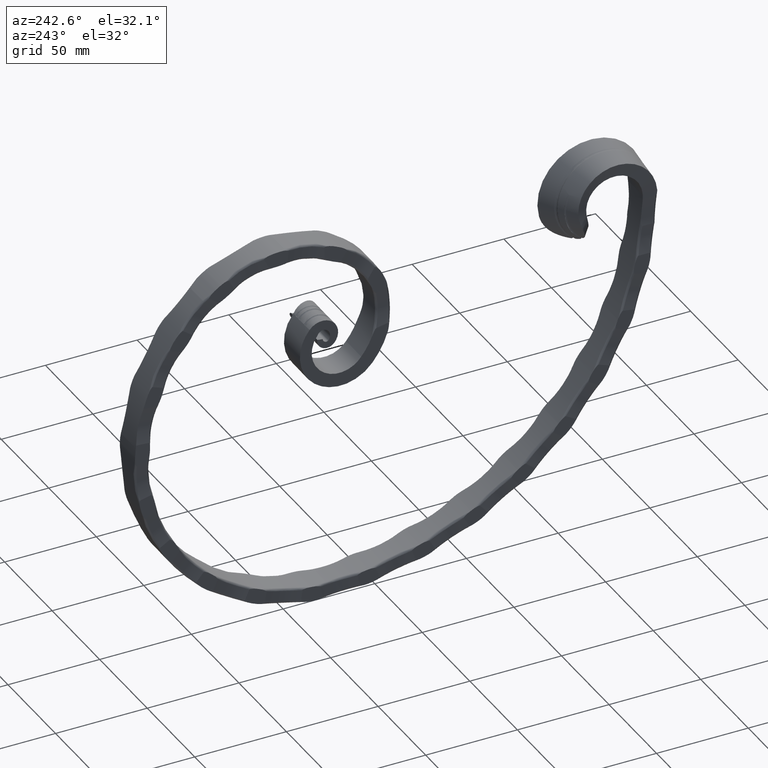
[diagram: clean part render]
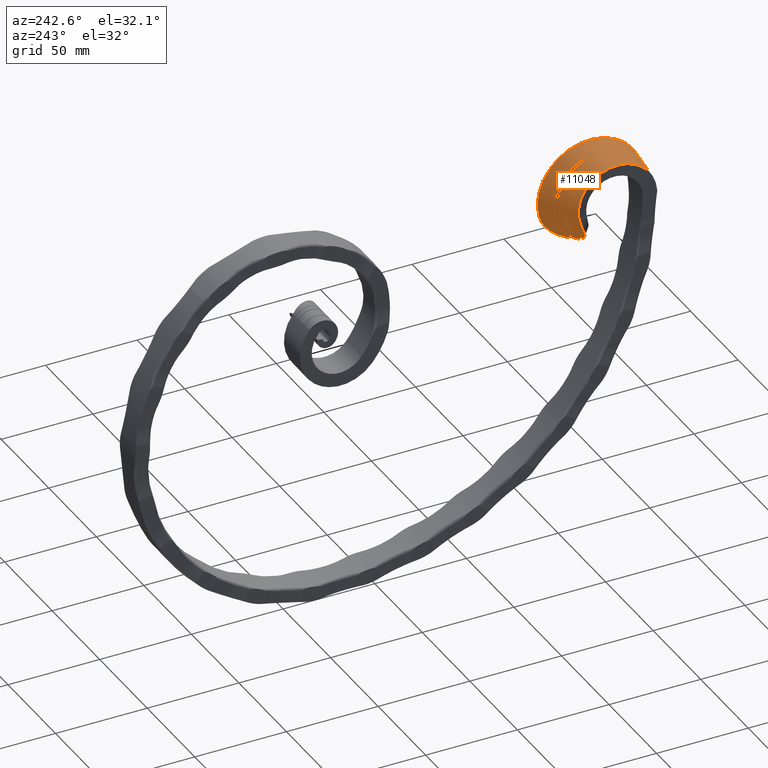
[diagram: same view with one face highlighted and labeled with its STEP entity id]
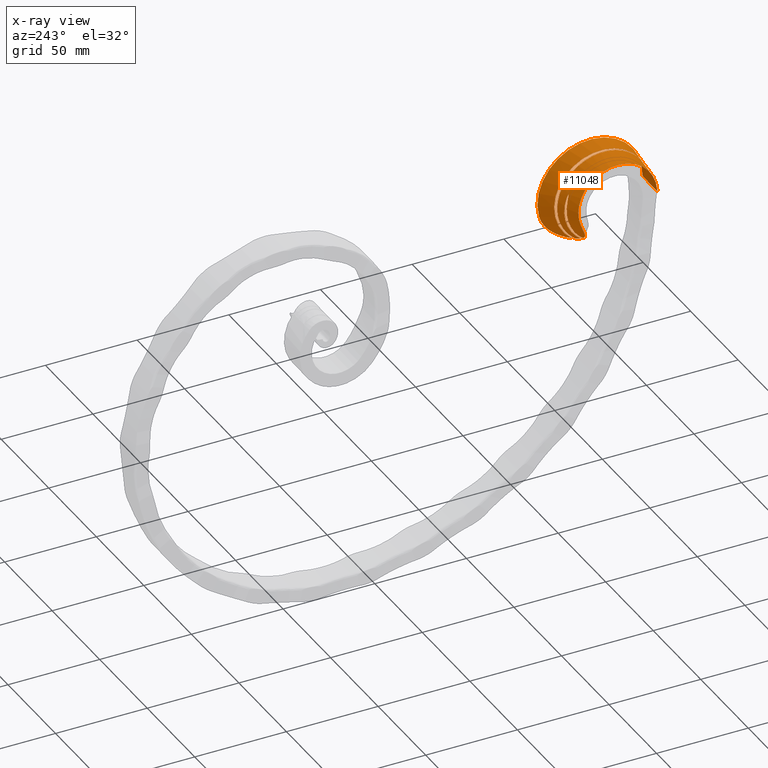
[diagram: x-ray of the same camera — body ghosted, the highlighted face saturated]
A machine part, auxiliary view. The second image highlights one B-rep face of the part: STEP entity #11048.
The next image is the same camera in x-ray: the body ghosted, the highlighted face saturated — about 0% of this face is hidden behind the body in this view.
In plain terms, the highlighted face is a freeform B-spline surface patch.
Its self-contained STEP definition (entity closure, byte-faithful):
#7 = CARTESIAN_POINT ( 'NONE',  ( 0.4046545045389011700, 44.35346468737994000, 61.21535776048465000 ) ) ;
#38 = CARTESIAN_POINT ( 'NONE',  ( -3.713677905306601800, 46.95859076458237500, 85.60435674398264900 ) ) ;
#122 = CARTESIAN_POINT ( 'NONE',  ( -4.061015382409624200, 46.36935283958447900, 86.72395618893986600 ) ) ;
#211 = CARTESIAN_POINT ( 'NONE',  ( -4.552540964361331700, 47.64450459978508700, 81.24166794001725100 ) ) ;
#235 = VERTEX_POINT ( 'NONE', #668 ) ;
#293 = CARTESIAN_POINT ( 'NONE',  ( -4.830681842028948100, 45.14676392372219000, 67.43612818840910000 ) ) ;
#412 = CARTESIAN_POINT ( 'NONE',  ( 8.077712033042658400, 0.02215007884358606200, 79.40595449023814500 ) ) ;
#448 = VERTEX_POINT ( 'NONE', #3330 ) ;
#668 = CARTESIAN_POINT ( 'NONE',  ( -7.417567950427967500, 2.775557561562891400E-014, 77.46681638635321600 ) ) ;
#760 = ORIENTED_EDGE ( 'NONE', *, *, #24420, .T. ) ;
#763 = CARTESIAN_POINT ( 'NONE',  ( -0.1726782574718009900, 40.07180178071603600, 57.59409627585339600 ) ) ;
#860 = CARTESIAN_POINT ( 'NONE',  ( 0.4031574146756074500, 40.37609016458728900, 57.42051969867375800 ) ) ;
#936 = CARTESIAN_POINT ( 'NONE',  ( -9.805080397110002000, 29.72316063572104000, 99.16512212265777700 ) ) ;
#964 = CARTESIAN_POINT ( 'NONE',  ( -7.494909445158469900, 0.002167341518089708400, 77.48223012355828100 ) ) ;
#991 = CARTESIAN_POINT ( 'NONE',  ( 2.153355759835845300, 48.28251731812625300, 65.39792249497124000 ) ) ;
#1087 = CARTESIAN_POINT ( 'NONE',  ( 2.130588235911123900, 48.98999547873683700, 87.48406834129724500 ) ) ;
#1179 = CARTESIAN_POINT ( 'NONE',  ( 2.001894952901132700, 37.44871637248173400, 100.0195760565928300 ) ) ;
#1266 = CARTESIAN_POINT ( 'NONE',  ( 1.749924230457730300, 21.57650100309085100, 102.7389972019139600 ) ) ;
#1354 = CARTESIAN_POINT ( 'NONE',  ( 1.317845256815648200, 6.902711322241778200, 95.03630474026778100 ) ) ;
#1379 = CARTESIAN_POINT ( 'NONE',  ( -11.46468191822048700, 43.44245422419015800, 72.20080714476111400 ) ) ;
#1437 = CARTESIAN_POINT ( 'NONE',  ( 1.011901000634758000, 1.458381421132097100, 86.17026355039551800 ) ) ;
#1468 = CARTESIAN_POINT ( 'NONE',  ( 11.86732868806311500, 50.02617433897074100, 57.44475894044169500 ) ) ;
#1491 = CARTESIAN_POINT ( 'NONE',  ( 10.93293185059946600, 51.86466323729519700, 62.05100274835331900 ) ) ;
#1522 = CARTESIAN_POINT ( 'NONE',  ( 0.7889240484920608800, 1.115680791272770400, 85.07046507264365700 ) ) ;
#1541 = CARTESIAN_POINT ( 'NONE',  ( -3.063641047619770900, 39.18434240727955100, 59.02342452768319000 ) ) ;
#1558 = CARTESIAN_POINT ( 'NONE',  ( 8.516227421628684600, 2.169110670608330100, 90.21525714800401400 ) ) ;
#1583 = CARTESIAN_POINT ( 'NONE',  ( 5.667886928572917400, 44.27075992354308200, 56.90862780206411000 ) ) ;
#1615 = CARTESIAN_POINT ( 'NONE',  ( 0.6761728204816450600, 2.946319584382348200, 89.40629978739146100 ) ) ;
#1650 = CARTESIAN_POINT ( 'NONE',  ( -10.06282148032709700, 34.84134389484221100, 96.90204824860515500 ) ) ;
#1684 = CARTESIAN_POINT ( 'NONE',  ( 7.471852211257529000, 0.0007103798905311139300, 77.53076654668075200 ) ) ;
#1698 = CARTESIAN_POINT ( 'NONE',  ( -9.566113132704295200, 40.30999555786549800, 64.97557746800737300 ) ) ;
#1704 = CARTESIAN_POINT ( 'NONE',  ( 0.5251126645996897500, 14.66886214607818700, 100.3963440599779300 ) ) ;
#1788 = CARTESIAN_POINT ( 'NONE',  ( 0.4647202954371461600, 32.12114033444702700, 101.6332952863986500 ) ) ;
#1853 = CARTESIAN_POINT ( 'NONE',  ( 11.50402912730326800, 54.45752578793186400, 67.79832886126654000 ) ) ;
#1873 = CARTESIAN_POINT ( 'NONE',  ( 0.4287178758976921100, 46.18160434405823600, 91.22834712277882800 ) ) ;
#1904 = CARTESIAN_POINT ( 'NONE',  ( -3.069935251691676500, 41.90144415151966900, 61.45384806774478600 ) ) ;
#1918 = B_SPLINE_CURVE_WITH_KNOTS ( 'NONE', 3,
 ( #1904, #14254, #16309, #3979, #18387, #6068, #20475, #8133, #22558, #10223, #24610, #12278, #26675, #14350, #1991, #16402, #4070, #18476, #6155, #20561, #8222, #22645, #10308, #24709, #12373, #38, #14435, #2083, #16485, #4157, #18564, #6241, #20643, #8306, #22739, #10394, #24792, #12463, #122, #14525, #2174, #16571, #4243, #18655, #6327, #20731, #8396, #22830, #10480, #24871, #12550, #211, #14606, #2259, #16661, #4336, #18745, #6418, #20820, #8480, #22919, #10563, #24955, #12639, #293, #14687, #2337, #16753, #4425, #18834, #6506, #20910 ),
 .UNSPECIFIED., .F., .F.,
 ( 4, 2, 2, 2, 2, 2, 2, 2, 2, 2, 2, 2, 2, 2, 2, 2, 2, 2, 2, 2, 2, 2, 2, 2, 2, 2, 2, 2, 2, 2, 2, 2, 2, 2, 2, 4 ),
 ( 0.003969182100305719400, 0.005697004881677323500, 0.007424827663048926700, 0.009152650444420529900, 0.01088047322579213300, 0.01433611878853534300, 0.01606394156990696700, 0.01779176435127859500, 0.02124740991402188800, 0.02297523269539353300, 0.02470305547676518100, 0.02815870103950847400, 0.02988652382088010200, 0.03075043521156593800, 0.03118239090690886100, 0.03139836875458030400, 0.03150635767841603000, 0.03156035214033390400, 0.03161434660225177800, 0.03172233552608756000, 0.03183032444992334200, 0.03204630229759494000, 0.03247825799293819300, 0.03334216938362464400, 0.03506999216499758600, 0.03679781494637052900, 0.03852563772774346400, 0.04198128329048934900, 0.04370910607186229100, 0.04543692885323523400, 0.04889257441598108400, 0.05062039719735402000, 0.05234821997872696200, 0.05580386554147284700, 0.05753168832284577500, 0.05925951110421872500 ),
 .UNSPECIFIED. ) ;
#1942 = CARTESIAN_POINT ( 'NONE',  ( 9.031760308188959000, 10.79693585374444900, 100.5009846566071000 ) ) ;
#1958 = CARTESIAN_POINT ( 'NONE',  ( 0.4111503856460302900, 50.20623699455984500, 75.66215713267666800 ) ) ;
#1991 = CARTESIAN_POINT ( 'NONE',  ( -3.246443358840113400, 47.98565407440992200, 72.92019166033222200 ) ) ;
#2051 = CARTESIAN_POINT ( 'NONE',  ( 0.4253122216621678100, 43.33267540988922000, 60.11206570008644000 ) ) ;
#2083 = CARTESIAN_POINT ( 'NONE',  ( -3.797079584617927500, 46.67638026011471200, 86.26346211219426200 ) ) ;
#2174 = CARTESIAN_POINT ( 'NONE',  ( -4.095698840102883800, 46.39325252362832000, 86.62486423484386900 ) ) ;
#2259 = CARTESIAN_POINT ( 'NONE',  ( -4.638503687838510600, 47.83895141282980000, 78.97369534505456600 ) ) ;
#2337 = CARTESIAN_POINT ( 'NONE',  ( -4.838602443254784700, 43.69709845770053400, 64.99712343210509900 ) ) ;
#2648 = B_SPLINE_CURVE_WITH_KNOTS ( 'NONE', 3,
 ( #1853, #26537, #6020, #20427, #8085, #22510, #10174, #24563, #12226, #26626, #14296, #1942, #16349, #4024, #18430, #6108, #20510 ),
 .UNSPECIFIED., .F., .F.,
 ( 4, 1, 1, 1, 1, 1, 1, 1, 1, 1, 1, 1, 1, 1, 4 ),
 ( 0.1556909685597093500, 0.1938028570125166500, 0.2577550799770388400, 0.3213844047775982200, 0.3846892785897625400, 0.4476682731905031700, 0.5103230250240365900, 0.5726633423808489300, 0.6346795608638097200, 0.6963713815246755900, 0.7577393955885792800, 0.8187873653107224900, 0.8795118471030244400, 0.9399101516636960700, 0.9819018657741979100 ),
 .UNSPECIFIED. ) ;
#2883 = CARTESIAN_POINT ( 'NONE',  ( 2.146588070278989200, 41.41003923904213500, 56.99871040378679500 ) ) ;
#2930 = CARTESIAN_POINT ( 'NONE',  ( -0.7528962107540830800, 39.80096395168226300, 57.80142495540335500 ) ) ;
#3003 = CARTESIAN_POINT ( 'NONE',  ( -9.289540850238346100, 18.29611209918004600, 99.54592208276849900 ) ) ;
#3031 = CARTESIAN_POINT ( 'NONE',  ( -7.417567950427967500, 2.775557561562891400E-014, 77.46681638635321600 ) ) ;
#3062 = CARTESIAN_POINT ( 'NONE',  ( 2.160901421412342300, 49.53221166227533000, 68.10137628613574600 ) ) ;
#3150 = CARTESIAN_POINT ( 'NONE',  ( 2.124305352519813000, 48.35897332397820500, 88.83982160421092500 ) ) ;
#3246 = CARTESIAN_POINT ( 'NONE',  ( 1.984972510499537000, 36.11032778668803200, 100.6826338616508400 ) ) ;
#3330 = CARTESIAN_POINT ( 'NONE',  ( -3.069935251691676500, 41.90144415151966900, 61.45384806774478600 ) ) ;
#3331 = CARTESIAN_POINT ( 'NONE',  ( 1.705638140805671600, 19.63026560010857600, 102.3459647621500300 ) ) ;
#3422 = CARTESIAN_POINT ( 'NONE',  ( 1.222057751649042700, 5.306061188055242200, 93.13733519900920000 ) ) ;
#3458 = VERTEX_POINT ( 'NONE', #11752 ) ;
#3475 = CARTESIAN_POINT ( 'NONE',  ( 11.53396257131297500, 54.22053937976629400, 66.91280218280273600 ) ) ;
#3511 = CARTESIAN_POINT ( 'NONE',  ( 0.9436607437851231000, 1.226294963661870700, 85.45923619600942800 ) ) ;
#3540 = CARTESIAN_POINT ( 'NONE',  ( 11.35170000075693900, 55.65764547657246900, 72.33272728265484400 ) ) ;
#3565 = CARTESIAN_POINT ( 'NONE',  ( 10.27715735448653500, 50.49041647878395600, 60.38563635823810200 ) ) ;
#3596 = CARTESIAN_POINT ( 'NONE',  ( 0.7680551850655834600, 1.143881659741613700, 85.15827441582872800 ) ) ;
#3626 = CARTESIAN_POINT ( 'NONE',  ( 8.086015385827119300, 0.01409203381071238300, 79.61383222423816600 ) ) ;
#3651 = CARTESIAN_POINT ( 'NONE',  ( 4.665361901866082100, 43.33445094844012900, 56.80562472394729700 ) ) ;
#3687 = CARTESIAN_POINT ( 'NONE',  ( 0.6584416467555129800, 4.219386209694847300, 91.53826134127487500 ) ) ;
#3722 = CARTESIAN_POINT ( 'NONE',  ( -9.547308360994989600, 24.08996396216900100, 100.1015128502961700 ) ) ;
#3755 = CARTESIAN_POINT ( 'NONE',  ( 7.508222333267005900, 0.001537141612279437300, 77.60843604941347000 ) ) ;
#3770 = CARTESIAN_POINT ( 'NONE',  ( -10.16023319765587000, 40.75858455433260700, 65.98885973050927600 ) ) ;
#3777 = CARTESIAN_POINT ( 'NONE',  ( 0.5097546837114933500, 18.39430584087280700, 101.8069871461422800 ) ) ;
#3816 = ORIENTED_EDGE ( 'NONE', *, *, #22570, .T. ) ;
#3866 = CARTESIAN_POINT ( 'NONE',  ( 0.4599528044573262800, 33.54029315980061200, 101.1748107602382200 ) ) ;
#3949 = CARTESIAN_POINT ( 'NONE',  ( 0.4266656943034459200, 47.65155239352076000, 88.65317170319940500 ) ) ;
#3979 = CARTESIAN_POINT ( 'NONE',  ( -3.115931274708327400, 43.43555827533965200, 63.13605745538836100 ) ) ;
#4024 = CARTESIAN_POINT ( 'NONE',  ( 8.516227421628698800, 2.169110670608329600, 90.21525714800401400 ) ) ;
#4039 = CARTESIAN_POINT ( 'NONE',  ( 0.4099961544226706800, 49.92349638553763200, 73.19873180977936000 ) ) ;
#4070 = CARTESIAN_POINT ( 'NONE',  ( -3.305271515638511300, 48.40510089446632200, 75.74547049610845300 ) ) ;
#4125 = CARTESIAN_POINT ( 'NONE',  ( 0.4408336210431972900, 42.25784845948317800, 59.06623298223212300 ) ) ;
#4157 = CARTESIAN_POINT ( 'NONE',  ( -3.860963980639309700, 46.52063561003266300, 86.58314030525309600 ) ) ;
#4243 = CARTESIAN_POINT ( 'NONE',  ( -4.138356037653284900, 46.44040031458897000, 86.45662145469462700 ) ) ;
#4336 = CARTESIAN_POINT ( 'NONE',  ( -4.718422030224097300, 47.72237162594070300, 76.12631847517468500 ) ) ;
#4340 = CARTESIAN_POINT ( 'NONE',  ( -3.054247311578651500, 41.02719169695356500, 60.61394051338651000 ) ) ;
#4425 = CARTESIAN_POINT ( 'NONE',  ( -4.833664666898753700, 42.27239879454640500, 63.24177483304919900 ) ) ;
#4865 = EDGE_CURVE ( 'NONE', #24788, #13261, #25129, .T. ) ;
#5054 = CARTESIAN_POINT ( 'NONE',  ( 2.153860729975295700, 41.78581537193818500, 57.32668569409306500 ) ) ;
#5089 = CARTESIAN_POINT ( 'NONE',  ( -8.774004994688457500, 7.748249616374097900, 94.07804201680029600 ) ) ;
#5150 = CARTESIAN_POINT ( 'NONE',  ( 2.161685548252818600, 50.97246609181642900, 73.90533583486991600 ) ) ;
#5242 = CARTESIAN_POINT ( 'NONE',  ( 2.102066553468775900, 46.07902226199143300, 92.68365597161788100 ) ) ;
#5335 = CARTESIAN_POINT ( 'NONE',  ( 1.945198011409548600, 33.34461523938187400, 101.8365720338495600 ) ) ;
#5422 = CARTESIAN_POINT ( 'NONE',  ( 1.671804080468219000, 18.18038153697205000, 101.9604856360853400 ) ) ;
#5507 = CARTESIAN_POINT ( 'NONE',  ( 1.163923086386863000, 4.424717978815544400, 91.92305477299125000 ) ) ;
#5596 = CARTESIAN_POINT ( 'NONE',  ( 0.9062869360410343900, 1.153860388355899300, 85.22104544101605900 ) ) ;
#5625 = CARTESIAN_POINT ( 'NONE',  ( 10.83615419537688700, 53.43868258601478500, 87.61050414489967900 ) ) ;
#5653 = CARTESIAN_POINT ( 'NONE',  ( 9.768512732788945400, 49.57254130833398900, 59.50246660955890100 ) ) ;
#5660 = ORIENTED_EDGE ( 'NONE', *, *, #25651, .T. ) ;
#5674 = EDGE_CURVE ( 'NONE', #12057, #235, #24838, .T. ) ;
#5692 = CARTESIAN_POINT ( 'NONE',  ( 0.7479243766305727600, 1.181755205390757200, 85.27587725220385600 ) ) ;
#5704 = ORIENTED_EDGE ( 'NONE', *, *, #23783, .F. ) ;
#5724 = CARTESIAN_POINT ( 'NONE',  ( -12.12435565298218300, 35.81484655242340400, 63.01166313506922700 ) ) ;
#5730 = ORIENTED_EDGE ( 'NONE', *, *, #5674, .F. ) ;
#5747 = CARTESIAN_POINT ( 'NONE',  ( 2.900282065969606500, 41.90721395501395800, 56.86331928085758100 ) ) ;
#5774 = CARTESIAN_POINT ( 'NONE',  ( -4.788019386995602900, 39.04195103715922200, 60.19742708643666900 ) ) ;
#5783 = CARTESIAN_POINT ( 'NONE',  ( 0.6126958776768738300, 6.011578878109970600, 93.89390824726638100 ) ) ;
#5812 = CARTESIAN_POINT ( 'NONE',  ( -9.031760308188937700, 12.71804930843093800, 97.52593081537978000 ) ) ;
#5849 = CARTESIAN_POINT ( 'NONE',  ( 7.569820779318605200, 0.003161892257669973400, 77.76850671561776100 ) ) ;
#5861 = CARTESIAN_POINT ( 'NONE',  ( -10.54430106429125000, 41.11556539098187100, 66.78230002207409700 ) ) ;
#5871 = CARTESIAN_POINT ( 'NONE',  ( 0.4879838050392544300, 22.78916340004606800, 102.5351021677072700 ) ) ;
#5951 = CARTESIAN_POINT ( 'NONE',  ( 0.4490954371001564800, 37.60656923660936000, 99.38844495005625400 ) ) ;
#6020 = CARTESIAN_POINT ( 'NONE',  ( 11.31654440799338300, 55.64012376030683500, 73.40221518392438300 ) ) ;
#6037 = CARTESIAN_POINT ( 'NONE',  ( 0.4245300586897743400, 48.62600380460642700, 86.38271750335849200 ) ) ;
#6068 = CARTESIAN_POINT ( 'NONE',  ( -3.142000752532627700, 44.44999384385753400, 64.50531773294355300 ) ) ;
#6108 = CARTESIAN_POINT ( 'NONE',  ( 8.137803548518533600, 0.05384774781920124300, 80.90445239334046300 ) ) ;
#6124 = CARTESIAN_POINT ( 'NONE',  ( 0.4087846742981204900, 49.25455820896073800, 70.31394125783828000 ) ) ;
#6155 = CARTESIAN_POINT ( 'NONE',  ( -3.365281099265176000, 48.44965047521228000, 78.02296882059242500 ) ) ;
#6206 = CARTESIAN_POINT ( 'NONE',  ( 0.4306623566280761700, 41.13976488948677700, 58.06696279547851000 ) ) ;
#6241 = CARTESIAN_POINT ( 'NONE',  ( -3.910874841311058800, 46.43573532836065000, 86.73463269796084800 ) ) ;
#6327 = CARTESIAN_POINT ( 'NONE',  ( -4.199752907216688600, 46.54253129605480400, 86.11805157997201800 ) ) ;
#6338 = B_SPLINE_CURVE_WITH_KNOTS ( 'NONE', 3,
 ( #19424, #21509, #9161, #23587, #11241, #25641, #13319, #964, #15364, #3031 ),
 .UNSPECIFIED., .F., .F.,
 ( 4, 2, 2, 2, 4 ),
 ( 9.805561625928972200E-017, 0.0004708049491442460700, 0.0007062074237163201000, 0.0008239086610023560800, 0.0009416098982883921700 ),
 .UNSPECIFIED. ) ;
#6383 = B_SPLINE_CURVE_WITH_KNOTS ( 'NONE', 3,
 ( #22149, #24210, #11954, #26355, #14038, #1684, #16087, #3755, #18160, #5849, #20245, #7910, #22333, #9988, #24382, #12041 ),
 .UNSPECIFIED., .F., .F.,
 ( 4, 2, 2, 2, 2, 2, 2, 4 ),
 ( 0.0000000000000000000, 3.255785051291823200E-005, 6.511570102583646300E-005, 0.0001302314020516742500, 0.0002604628041033105100, 0.0005209256082066232900, 0.001041851216413289300, 0.002083702432826580800 ),
 .UNSPECIFIED. ) ;
#6418 = CARTESIAN_POINT ( 'NONE',  ( -4.755067024646325400, 47.49797580493682900, 74.42107629118206100 ) ) ;
#6422 = CARTESIAN_POINT ( 'NONE',  ( -3.069935251691676500, 41.90144415151966900, 61.45384806774478600 ) ) ;
#6506 = CARTESIAN_POINT ( 'NONE',  ( -4.811249299514062500, 41.08481133685460000, 62.01284228190490200 ) ) ;
#6606 = ORIENTED_EDGE ( 'NONE', *, *, #25153, .T. ) ;
#6700 = B_SPLINE_CURVE_WITH_KNOTS ( 'NONE', 3,
 ( #5774, #18089, #22256, #9914, #24309, #11968, #26367, #14052, #1698, #16101, #3770, #18173, #5861, #20260, #7925, #22346, #10001, #24397, #12056, #26457 ),
 .UNSPECIFIED., .F., .F.,
 ( 4, 2, 2, 2, 2, 2, 2, 2, 2, 4 ),
 ( 0.005069793381808457600, 0.008839806782681165100, 0.009782310132899329400, 0.01072481348311749400, 0.01260982018355378800, 0.01355232353377192100, 0.01449482688399005000, 0.01637983358442632300, 0.01826484028486260000, 0.02014984698529887300 ),
 .UNSPECIFIED. ) ;
#6857 = B_SPLINE_CURVE_WITH_KNOTS ( 'NONE', 3,
 ( #22383, #26499, #16663, #4340, #18750, #6422 ),
 .UNSPECIFIED., .F., .F.,
 ( 4, 2, 4 ),
 ( 0.0003169208481356086100, 0.002143051474220664000, 0.003969182100305719400 ),
 .UNSPECIFIED. ) ;
#7017 = VERTEX_POINT ( 'NONE', #11858 ) ;
#7134 = CARTESIAN_POINT ( 'NONE',  ( 2.157359879432641000, 43.25533567370868600, 58.67541181108789100 ) ) ;
#7168 = B_SPLINE_CURVE_WITH_KNOTS ( 'NONE', 3,
 ( #18227, #19496, #7967, #22394 ),
 .UNSPECIFIED., .F., .F.,
 ( 4, 4 ),
 ( 0.05925951110421872500, 0.06142842451970805700 ),
 .UNSPECIFIED. ) ;
#7171 = CARTESIAN_POINT ( 'NONE',  ( -8.267639406125360000, 1.020113736269256900, 83.98764681792356200 ) ) ;
#7225 = CARTESIAN_POINT ( 'NONE',  ( 2.157368309165344400, 51.07856153858630000, 78.83929400585601900 ) ) ;
#7314 = CARTESIAN_POINT ( 'NONE',  ( 2.078455277744427000, 44.11772677116842800, 94.91362620901740900 ) ) ;
#7405 = CARTESIAN_POINT ( 'NONE',  ( 1.877174447606702000, 28.99378924866101000, 102.7640237692717700 ) ) ;
#7487 = CARTESIAN_POINT ( 'NONE',  ( 1.616697672685276400, 15.83412167976587200, 101.1536746190421200 ) ) ;
#7581 = CARTESIAN_POINT ( 'NONE',  ( 1.113247916774718000, 3.616258472748491700, 90.66536207679683900 ) ) ;
#7657 = DIRECTION ( 'NONE',  ( -1.000000000000000000, -0.0000000000000000000, 0.0000000000000000000 ) ) ;
#7670 = CARTESIAN_POINT ( 'NONE',  ( 0.8772045123505029000, 1.119721431402162200, 85.10316556467630300 ) ) ;
#7695 = CARTESIAN_POINT ( 'NONE',  ( 10.32061806383751800, 44.31283625807602500, 99.50041582866076300 ) ) ;
#7721 = CARTESIAN_POINT ( 'NONE',  ( 8.970483038561793500, 48.28090025577773800, 58.49569369219044300 ) ) ;
#7754 = CARTESIAN_POINT ( 'NONE',  ( 0.7219968082614540700, 1.259248481931474000, 85.51267118661836300 ) ) ;
#7787 = CARTESIAN_POINT ( 'NONE',  ( -11.86732868806303300, 39.58902618139190800, 65.71090506263129800 ) ) ;
#7840 = CARTESIAN_POINT ( 'NONE',  ( 0.5872375992363466600, 7.372079833690429000, 95.33764329221480700 ) ) ;
#7867 = CARTESIAN_POINT ( 'NONE',  ( -8.516227421628688200, 3.751946080758758100, 89.41109746902760900 ) ) ;
#7910 = CARTESIAN_POINT ( 'NONE',  ( 7.677454941585303100, 0.006296475049366222200, 78.09400037963637000 ) ) ;
#7925 = CARTESIAN_POINT ( 'NONE',  ( -11.04973842089121000, 41.73364855023641000, 68.15210706289022400 ) ) ;
#7933 = CARTESIAN_POINT ( 'NONE',  ( 0.4826597474533588200, 24.28564248118693000, 102.6276544694664800 ) ) ;
#7967 = CARTESIAN_POINT ( 'NONE',  ( -4.781537784191376000, 39.59532047417466300, 60.65785907415730800 ) ) ;
#8014 = CARTESIAN_POINT ( 'NONE',  ( 0.4445910594262250100, 40.87150990873956100, 97.08756955576285500 ) ) ;
#8085 = CARTESIAN_POINT ( 'NONE',  ( 10.83615419537688300, 53.43868258601478500, 87.61050414489967900 ) ) ;
#8104 = CARTESIAN_POINT ( 'NONE',  ( 0.4226043530098367900, 49.11414620510429800, 84.97248109466229900 ) ) ;
#8133 = CARTESIAN_POINT ( 'NONE',  ( -3.157440306490892000, 45.35766428891994900, 65.95902810478746400 ) ) ;
#8190 = CARTESIAN_POINT ( 'NONE',  ( 0.4036219964038836900, 48.24593193278462200, 67.49840557580842000 ) ) ;
#8222 = CARTESIAN_POINT ( 'NONE',  ( -3.416925532757386200, 48.34928714848707200, 79.74038248325938100 ) ) ;
#8275 = CARTESIAN_POINT ( 'NONE',  ( 0.4031574146756074500, 40.37609016458728900, 57.42051969867375800 ) ) ;
#8306 = CARTESIAN_POINT ( 'NONE',  ( -3.952549903242964300, 46.38927009705994200, 86.79990941699196600 ) ) ;
#8357 = CARTESIAN_POINT ( 'NONE',  ( 0.4031574146756074500, 40.37609016458728900, 57.42051969867375800 ) ) ;
#8396 = CARTESIAN_POINT ( 'NONE',  ( -4.286142522472800900, 46.74886487317589700, 85.43559791494745100 ) ) ;
#8405 = VECTOR ( 'NONE', #7657, 1000.000000000000000 ) ;
#8480 = CARTESIAN_POINT ( 'NONE',  ( -4.792701745009305900, 47.03037030699681500, 72.19728229821852500 ) ) ;
#8547 = FACE_OUTER_BOUND ( 'NONE', #23462, .T. ) ;
#8946 = CARTESIAN_POINT ( 'NONE',  ( -11.42684258105365900, 43.70057242906779000, 72.87037343557048500 ) ) ;
#9133 = CARTESIAN_POINT ( 'NONE',  ( -11.09391626697323100, 44.96070964439305600, 79.17418928462811300 ) ) ;
#9161 = CARTESIAN_POINT ( 'NONE',  ( -7.868897030471460500, 0.05867829342241096000, 77.87403609856632200 ) ) ;
#9194 = CARTESIAN_POINT ( 'NONE',  ( 2.148053640759215500, 44.98942589261485400, 60.44743317942301500 ) ) ;
#9227 = CARTESIAN_POINT ( 'NONE',  ( -8.027631239804851000, 0.09868407980940513400, 78.14238437844615200 ) ) ;
#9282 = CARTESIAN_POINT ( 'NONE',  ( 2.151378360929459900, 50.71796009892042200, 81.81378812833081300 ) ) ;
#9374 = CARTESIAN_POINT ( 'NONE',  ( 2.065706773317904400, 43.06131178154401300, 95.97344597419250100 ) ) ;
#9462 = CARTESIAN_POINT ( 'NONE',  ( 1.854863693619326100, 27.50741251173043300, 102.9309575796128100 ) ) ;
#9466 = EDGE_CURVE ( 'NONE', #22549, #21713, #6700, .T. ) ;
#9559 = CARTESIAN_POINT ( 'NONE',  ( 1.552081633769878800, 13.15612410613936900, 99.88438485929241000 ) ) ;
#9647 = CARTESIAN_POINT ( 'NONE',  ( 1.079141534781630200, 2.878788402498482700, 89.36562373211229700 ) ) ;
#9702 = CARTESIAN_POINT ( 'NONE',  ( 11.52043945151968000, 53.92675552637085400, 66.05318253445071300 ) ) ;
#9724 = CARTESIAN_POINT ( 'NONE',  ( 0.0000000000000000000, 2.775557561562891400E-014, 77.46681638635321600 ) ) ;
#9737 = CARTESIAN_POINT ( 'NONE',  ( 0.8537230737346133100, 1.104057727084477100, 85.04613329008809300 ) ) ;
#9758 = CARTESIAN_POINT ( 'NONE',  ( 11.50402912730326800, 54.45752578793186400, 67.79832886126654000 ) ) ;
#9763 = CARTESIAN_POINT ( 'NONE',  ( 9.805080397110028700, 30.94811179596749200, 105.2370217982933700 ) ) ;
#9788 = CARTESIAN_POINT ( 'NONE',  ( 7.735415351921715500, 46.58886380771135500, 57.60599389050080500 ) ) ;
#9830 = CARTESIAN_POINT ( 'NONE',  ( 0.6789820690006258500, 1.502504084086486700, 86.22151991656865300 ) ) ;
#9861 = CARTESIAN_POINT ( 'NONE',  ( -11.35170000075683600, 44.30202151762695500, 74.17393268604908500 ) ) ;
#9914 = CARTESIAN_POINT ( 'NONE',  ( -7.843196560404924100, 39.49776074090599600, 62.86956732110518700 ) ) ;
#9921 = CARTESIAN_POINT ( 'NONE',  ( 0.5714618910746642700, 8.466194562304844200, 96.36283775780353300 ) ) ;
#9950 = CARTESIAN_POINT ( 'NONE',  ( -8.086015385827115800, 0.3059904122031414900, 79.57027298117789400 ) ) ;
#9988 = CARTESIAN_POINT ( 'NONE',  ( 7.875625918383739200, 0.01285962083504016400, 78.75061809984383400 ) ) ;
#10001 = CARTESIAN_POINT ( 'NONE',  ( -11.39970958953823700, 42.48131140986179600, 69.84906233557275400 ) ) ;
#10008 = CARTESIAN_POINT ( 'NONE',  ( 0.4782237108377825900, 26.26872664866711900, 102.6259146995828400 ) ) ;
#10102 = CARTESIAN_POINT ( 'NONE',  ( 0.4390309412915060500, 43.06742172364846500, 95.09788181518690900 ) ) ;
#10174 = CARTESIAN_POINT ( 'NONE',  ( 10.32061806383752500, 44.31283625807602500, 99.50041582866076300 ) ) ;
#10191 = CARTESIAN_POINT ( 'NONE',  ( 0.4178055285571415900, 49.91055159955774200, 82.08752107093704400 ) ) ;
#10223 = CARTESIAN_POINT ( 'NONE',  ( -3.173423950148362300, 46.42111370127623400, 68.00457916727468400 ) ) ;
#10275 = CARTESIAN_POINT ( 'NONE',  ( 0.3930811931640164600, 46.93082711607061700, 64.83566514266991000 ) ) ;
#10308 = CARTESIAN_POINT ( 'NONE',  ( -3.515068091396268200, 47.91488684664679500, 82.58539085177766000 ) ) ;
#10394 = CARTESIAN_POINT ( 'NONE',  ( -3.997553498517612400, 46.36246097708806200, 86.81344544871262800 ) ) ;
#10480 = CARTESIAN_POINT ( 'NONE',  ( -4.403506562522300000, 47.12477750192034200, 84.05674968123860000 ) ) ;
#10563 = CARTESIAN_POINT ( 'NONE',  ( -4.819604477040551900, 46.10578618846329800, 69.51608665118995100 ) ) ;
#10734 = CARTESIAN_POINT ( 'NONE',  ( 7.417567950427963900, 2.775557561562891400E-014, 77.46681638635321600 ) ) ;
#11039 = ORIENTED_EDGE ( 'NONE', *, *, #21754, .T. ) ;
#11048 = ADVANCED_FACE ( 'NONE', ( #8547 ), #19799, .T. ) ;
#11213 = CARTESIAN_POINT ( 'NONE',  ( -10.57838709239932100, 42.33592506252802700, 89.16350111616721100 ) ) ;
#11241 = CARTESIAN_POINT ( 'NONE',  ( -7.678508199699773900, 0.02277142407265204300, 77.62669287694841100 ) ) ;
#11268 = CARTESIAN_POINT ( 'NONE',  ( 2.143969830776224500, 46.79202134871065500, 62.80054703320213600 ) ) ;
#11362 = CARTESIAN_POINT ( 'NONE',  ( 2.142061428150639400, 50.02122837872502000, 84.70195040658832400 ) ) ;
#11449 = CARTESIAN_POINT ( 'NONE',  ( 2.043759241033469700, 41.18281557252753100, 97.60786197839326000 ) ) ;
#11537 = CARTESIAN_POINT ( 'NONE',  ( 1.824480191923987700, 25.51413183824565300, 103.0329188196758400 ) ) ;
#11623 = CARTESIAN_POINT ( 'NONE',  ( 1.476059974247452100, 10.62147168893115400, 98.29161240807059100 ) ) ;
#11714 = CARTESIAN_POINT ( 'NONE',  ( 1.061344138984391400, 2.213698482695089200, 88.02303316849257400 ) ) ;
#11752 = CARTESIAN_POINT ( 'NONE',  ( -8.027631239804851000, 0.09868407980940513400, 78.14238437844615200 ) ) ;
#11771 = CARTESIAN_POINT ( 'NONE',  ( 11.38062598947587000, 53.20720063828522900, 64.39491535303290000 ) ) ;
#11808 = CARTESIAN_POINT ( 'NONE',  ( 0.8286593598412337300, 1.099599464111200800, 85.02577336910269400 ) ) ;
#11825 = CARTESIAN_POINT ( 'NONE',  ( -1.337884444122456400, 39.56391975272038800, 58.04185743163882400 ) ) ;
#11837 = CARTESIAN_POINT ( 'NONE',  ( 9.289540850238371000, 16.92620217404808300, 103.7538830979210200 ) ) ;
#11858 = CARTESIAN_POINT ( 'NONE',  ( -4.801986059260209500, 40.66521418435608800, 61.62143284110466400 ) ) ;
#11860 = CARTESIAN_POINT ( 'NONE',  ( 6.893856538178081200, 45.57472989957393100, 57.22538583785708300 ) ) ;
#11892 = CARTESIAN_POINT ( 'NONE',  ( 0.6675535327374595400, 2.065234616099948200, 87.61135112410411800 ) ) ;
#11921 = CARTESIAN_POINT ( 'NONE',  ( -10.83615419537682300, 44.29474781480708100, 84.27838946532502000 ) ) ;
#11954 = CARTESIAN_POINT ( 'NONE',  ( 7.436356002082468400, 0.0001162437083160039000, 77.47700503040214000 ) ) ;
#11968 = CARTESIAN_POINT ( 'NONE',  ( -8.464946016795520800, 39.73383340185437600, 63.55414979293615100 ) ) ;
#11975 = CARTESIAN_POINT ( 'NONE',  ( 0.5494321157433731400, 10.39477641078398100, 97.92074070380363100 ) ) ;
#12016 = EDGE_CURVE ( 'NONE', #14628, #448, #6857, .T. ) ;
#12041 = CARTESIAN_POINT ( 'NONE',  ( 8.077712033042658400, 0.02215007884358606200, 79.40595449023814500 ) ) ;
#12056 = CARTESIAN_POINT ( 'NONE',  ( -11.49825252974338800, 43.21345481162818900, 71.60677586618726300 ) ) ;
#12057 = VERTEX_POINT ( 'NONE', #10734 ) ;
#12065 = CARTESIAN_POINT ( 'NONE',  ( 0.4728561792759444800, 29.21253838214918000, 102.3107053409182000 ) ) ;
#12132 = VERTEX_POINT ( 'NONE', #15039 ) ;
#12156 = CARTESIAN_POINT ( 'NONE',  ( 0.4344757443663022100, 44.38682332314123600, 93.62294398737636000 ) ) ;
#12226 = CARTESIAN_POINT ( 'NONE',  ( 9.805080397110039300, 30.94811179596749200, 105.2370217982933700 ) ) ;
#12244 = CARTESIAN_POINT ( 'NONE',  ( 0.4122329599146700200, 50.26866468591706600, 77.65753286805231400 ) ) ;
#12278 = CARTESIAN_POINT ( 'NONE',  ( -3.207516557530025700, 47.41301608721656200, 70.68989190368549200 ) ) ;
#12340 = CARTESIAN_POINT ( 'NONE',  ( 0.3913783571415727100, 45.30769981759205900, 62.36332576422284300 ) ) ;
#12373 = CARTESIAN_POINT ( 'NONE',  ( -3.640896261578029600, 47.26422767065456300, 84.79737170145350000 ) ) ;
#12463 = CARTESIAN_POINT ( 'NONE',  ( -4.047636372708591800, 46.36183955118344400, 86.75767797124012800 ) ) ;
#12550 = CARTESIAN_POINT ( 'NONE',  ( -4.500828172918081900, 47.47567128827216000, 82.37307126352234800 ) ) ;
#12639 = CARTESIAN_POINT ( 'NONE',  ( -4.828698665375576100, 45.40600720196032800, 67.94941548723674900 ) ) ;
#12676 = B_SPLINE_CURVE_WITH_KNOTS ( 'NONE', 3,
 ( #860, #763, #2930, #17334 ),
 .UNSPECIFIED., .F., .F.,
 ( 4, 4 ),
 ( 0.02380182915262446500, 0.02581701463668760500 ),
 .UNSPECIFIED. ) ;
#13032 = ORIENTED_EDGE ( 'NONE', *, *, #9466, .T. ) ;
#13110 = CARTESIAN_POINT ( 'NONE',  ( -11.46468191822048700, 43.44245422419015800, 72.20080714476111400 ) ) ;
#13167 = ORIENTED_EDGE ( 'NONE', *, *, #22255, .T. ) ;
#13261 = VERTEX_POINT ( 'NONE', #8357 ) ;
#13293 = CARTESIAN_POINT ( 'NONE',  ( -10.06282148032709700, 34.84134389484221100, 96.90204824860515500 ) ) ;
#13319 = CARTESIAN_POINT ( 'NONE',  ( -7.562459343897264900, 0.007832172685276623700, 77.52217768475193800 ) ) ;
#13344 = CARTESIAN_POINT ( 'NONE',  ( 2.150112123933154000, 47.81656082644208500, 64.51531933096926300 ) ) ;
#13436 = CARTESIAN_POINT ( 'NONE',  ( 2.132594600676528600, 49.18194924477136700, 87.02674820944021400 ) ) ;
#13530 = CARTESIAN_POINT ( 'NONE',  ( 2.016928782731489500, 38.74625967076442400, 99.29510312199225600 ) ) ;
#13573 = ORIENTED_EDGE ( 'NONE', *, *, #12016, .T. ) ;
#13617 = CARTESIAN_POINT ( 'NONE',  ( 1.771207311812838000, 22.55553235840404700, 102.8708607938691300 ) ) ;
#13711 = CARTESIAN_POINT ( 'NONE',  ( 1.384986302528737700, 8.309591169599681100, 96.42174898580394400 ) ) ;
#13798 = CARTESIAN_POINT ( 'NONE',  ( 1.028814012594307500, 1.631732465289752700, 86.63884058362532400 ) ) ;
#13827 = CARTESIAN_POINT ( 'NONE',  ( 12.12435565298228100, 44.18515344757655300, 51.78945468570670100 ) ) ;
#13834 = VERTEX_POINT ( 'NONE', #9758 ) ;
#13850 = CARTESIAN_POINT ( 'NONE',  ( 11.19146233931357600, 52.57066725111698700, 63.19345432578404600 ) ) ;
#13875 = CARTESIAN_POINT ( 'NONE',  ( 0.8092923315652345000, 1.104657544851289900, 85.03835180804196600 ) ) ;
#13890 = CARTESIAN_POINT ( 'NONE',  ( -2.496364457573639700, 39.27160671309152900, 58.66984198993002100 ) ) ;
#13904 = CARTESIAN_POINT ( 'NONE',  ( 8.774004994688469900, 5.778791340839478400, 95.85991389436689800 ) ) ;
#13931 = CARTESIAN_POINT ( 'NONE',  ( 5.985991844314330700, 44.59141293724183400, 56.96832230007335300 ) ) ;
#13966 = CARTESIAN_POINT ( 'NONE',  ( 0.6739795030577001600, 2.712076951322031100, 88.96308855396613100 ) ) ;
#13998 = CARTESIAN_POINT ( 'NONE',  ( -10.32061806383747500, 39.11802296339528300, 93.46513139677975300 ) ) ;
#14038 = CARTESIAN_POINT ( 'NONE',  ( 7.455575641837356200, 0.0004063555760629020300, 77.50302948447490800 ) ) ;
#14052 = CARTESIAN_POINT ( 'NONE',  ( -9.224862113992056600, 40.10109214694013200, 64.49175161725806000 ) ) ;
#14060 = CARTESIAN_POINT ( 'NONE',  ( 0.5324635222668037100, 12.89490237259742000, 99.50488523189268600 ) ) ;
#14145 = CARTESIAN_POINT ( 'NONE',  ( 0.4662577415802465800, 31.63815884793456900, 101.7685668228657600 ) ) ;
#14224 = CARTESIAN_POINT ( 'NONE',  ( 0.4312595035255272800, 45.31299033821374400, 92.44952785067927400 ) ) ;
#14254 = CARTESIAN_POINT ( 'NONE',  ( -3.079115619358743200, 42.30650405489434700, 61.85744764716847800 ) ) ;
#14267 = B_SPLINE_CURVE_WITH_KNOTS ( 'NONE', 3,
 ( #13110, #8946, #21481, #9133, #23560, #11213, #25612, #13293, #936, #15336, #3003, #17412, #5089, #19488, #7171, #21574, #9227 ),
 .UNSPECIFIED., .F., .F.,
 ( 4, 1, 1, 1, 1, 1, 1, 1, 1, 1, 1, 1, 1, 1, 4 ),
 ( 0.1655035675514388000, 0.1938028570125166500, 0.2577550799770388400, 0.3213844047775982200, 0.3846892785897625400, 0.4476682731905032300, 0.5103230250240365900, 0.5726633423808489300, 0.6346795608638096100, 0.6963713815246755900, 0.7577393955885792800, 0.8187873653107222700, 0.8795118471030244400, 0.9399101516636960700, 0.9935655805329884900 ),
 .UNSPECIFIED. ) ;
#14296 = CARTESIAN_POINT ( 'NONE',  ( 9.289540850238372700, 16.92620217404808300, 103.7538830979210200 ) ) ;
#14316 = CARTESIAN_POINT ( 'NONE',  ( 0.4114060719488389400, 50.23679393376364300, 76.16202484078739600 ) ) ;
#14350 = CARTESIAN_POINT ( 'NONE',  ( -3.235770471653136600, 47.86278611143381300, 72.35536922017338700 ) ) ;
#14401 = CARTESIAN_POINT ( 'NONE',  ( 0.4113135240804645100, 44.01979075231165700, 60.84089759842959200 ) ) ;
#14435 = CARTESIAN_POINT ( 'NONE',  ( -3.741029750825474800, 46.85058218995807500, 85.87111996368999200 ) ) ;
#14525 = CARTESIAN_POINT ( 'NONE',  ( -4.085555008039964500, 46.38455263129157700, 86.65819333447899500 ) ) ;
#14606 = CARTESIAN_POINT ( 'NONE',  ( -4.575332034815724900, 47.70869145494621200, 80.67521600068911900 ) ) ;
#14628 = VERTEX_POINT ( 'NONE', #16338 ) ;
#14687 = CARTESIAN_POINT ( 'NONE',  ( -4.835589638575054700, 44.31909025811827300, 65.94159364685216900 ) ) ;
#14701 = VERTEX_POINT ( 'NONE', #412 ) ;
#15036 = CARTESIAN_POINT ( 'NONE',  ( 2.146588070278989200, 41.41003923904213500, 56.99871040378679500 ) ) ;
#15039 = CARTESIAN_POINT ( 'NONE',  ( -1.337884444122456400, 39.56391975272038800, 58.04185743163882400 ) ) ;
#15336 = CARTESIAN_POINT ( 'NONE',  ( -9.547308360994989600, 24.08996396216900100, 100.1015128502961700 ) ) ;
#15364 = CARTESIAN_POINT ( 'NONE',  ( -7.457496168200376200, 9.429456642454549500E-014, 77.46681638635386900 ) ) ;
#15391 = CARTESIAN_POINT ( 'NONE',  ( 2.154852640051457600, 48.50161573941739600, 65.84443624822388600 ) ) ;
#15438 = ORIENTED_EDGE ( 'NONE', *, *, #26062, .T. ) ;
#15483 = CARTESIAN_POINT ( 'NONE',  ( 2.126445958215826200, 48.57879864427953000, 88.39005745775351400 ) ) ;
#15575 = CARTESIAN_POINT ( 'NONE',  ( 1.996607057737883200, 37.00815409237132100, 100.2489679427593100 ) ) ;
#15666 = CARTESIAN_POINT ( 'NONE',  ( 1.716858413412447200, 20.11583555912399400, 102.4550331500634600 ) ) ;
#15749 = CARTESIAN_POINT ( 'NONE',  ( 1.280716289866184100, 6.239745762936194300, 94.30183427432520200 ) ) ;
#15835 = CARTESIAN_POINT ( 'NONE',  ( 0.9564911488943803600, 1.264043366931597100, 85.57801176434003300 ) ) ;
#15866 = CARTESIAN_POINT ( 'NONE',  ( 11.60941814150540300, 53.77452128012680500, 64.62782866233668200 ) ) ;
#15889 = CARTESIAN_POINT ( 'NONE',  ( 10.70677354179566600, 51.34487926296650100, 61.34793994749558300 ) ) ;
#15927 = CARTESIAN_POINT ( 'NONE',  ( 0.7820930733542254000, 1.125156910694433000, 85.10018311186149700 ) ) ;
#15962 = CARTESIAN_POINT ( 'NONE',  ( 8.258487695975530200, 0.04234843936710604900, 83.91888506942915200 ) ) ;
#15990 = CARTESIAN_POINT ( 'NONE',  ( 5.007077896767581700, 43.64170313892684300, 56.82710225607155500 ) ) ;
#16023 = CARTESIAN_POINT ( 'NONE',  ( 0.6723899286629736500, 3.682469220012122500, 90.70675831333581100 ) ) ;
#16049 = CARTESIAN_POINT ( 'NONE',  ( -9.805080397110002000, 29.72316063572104000, 99.16512212265777700 ) ) ;
#16087 = CARTESIAN_POINT ( 'NONE',  ( 7.481281434682640200, 0.0009174753174061769200, 77.55000661365082200 ) ) ;
#16101 = CARTESIAN_POINT ( 'NONE',  ( -10.01900029883578800, 40.64377585345609800, 65.73182219862152900 ) ) ;
#16109 = CARTESIAN_POINT ( 'NONE',  ( 0.5216888610502796700, 15.59308237691089300, 100.7938100261343200 ) ) ;
#16194 = CARTESIAN_POINT ( 'NONE',  ( 0.4615696443467023300, 33.07140840202173800, 101.3365928466068900 ) ) ;
#16281 = CARTESIAN_POINT ( 'NONE',  ( 0.4279832037171384400, 46.70616711044011300, 90.38713809340471500 ) ) ;
#16309 = CARTESIAN_POINT ( 'NONE',  ( -3.091851638780968200, 42.69582850295371700, 62.27340390106837700 ) ) ;
#16338 = CARTESIAN_POINT ( 'NONE',  ( -3.063641047619770900, 39.18434240727955100, 59.02342452768319000 ) ) ;
#16349 = CARTESIAN_POINT ( 'NONE',  ( 8.774004994688471700, 5.778791340839476700, 95.85991389436689800 ) ) ;
#16368 = CARTESIAN_POINT ( 'NONE',  ( 0.4104004010253373700, 50.07127362999416700, 74.17659871724244200 ) ) ;
#16402 = CARTESIAN_POINT ( 'NONE',  ( -3.280244137284235700, 48.28838009952288200, 74.61230875195204200 ) ) ;
#16452 = CARTESIAN_POINT ( 'NONE',  ( 0.4325906065122479000, 42.97957230657547000, 59.75789221646412100 ) ) ;
#16485 = CARTESIAN_POINT ( 'NONE',  ( -3.817940621357603700, 46.61626866558275100, 86.39336474851421600 ) ) ;
#16571 = CARTESIAN_POINT ( 'NONE',  ( -4.123499433921013600, 46.42056523008746200, 86.52428653583665200 ) ) ;
#16661 = CARTESIAN_POINT ( 'NONE',  ( -4.674245383810092100, 47.84222304122943100, 77.83646517341759400 ) ) ;
#16663 = CARTESIAN_POINT ( 'NONE',  ( -3.050724743856993500, 40.11639420593175500, 59.80633965718074300 ) ) ;
#16753 = CARTESIAN_POINT ( 'NONE',  ( -4.836204495655422900, 42.64431364608348200, 63.66897512794327000 ) ) ;
#17334 = CARTESIAN_POINT ( 'NONE',  ( -1.337884444122456400, 39.56391975272038800, 58.04185743163882400 ) ) ;
#17377 = CARTESIAN_POINT ( 'NONE',  ( 2.155764747275924300, 42.15797875288619400, 57.65878973824246100 ) ) ;
#17412 = CARTESIAN_POINT ( 'NONE',  ( -9.031760308188937700, 12.71804930843093800, 97.52593081537978000 ) ) ;
#17466 = CARTESIAN_POINT ( 'NONE',  ( 2.161454389030274600, 50.15547337217449800, 69.98316743884211600 ) ) ;
#17557 = CARTESIAN_POINT ( 'NONE',  ( 2.113161606032806400, 47.19616352825688900, 91.05352429930255200 ) ) ;
#17649 = CARTESIAN_POINT ( 'NONE',  ( 1.978599028125228800, 35.65167718696221800, 100.8874115202718100 ) ) ;
#17735 = CARTESIAN_POINT ( 'NONE',  ( 1.683092626561026000, 18.66179818300904000, 102.0985499363340100 ) ) ;
#17824 = CARTESIAN_POINT ( 'NONE',  ( 1.202162941157469900, 5.004194570804204800, 92.73767350299834800 ) ) ;
#17881 = CARTESIAN_POINT ( 'NONE',  ( 11.50402912730326800, 54.45752578793186400, 67.79832886126654000 ) ) ;
#17919 = CARTESIAN_POINT ( 'NONE',  ( 0.9164903608468049100, 1.171746141284075500, 85.28073040662425800 ) ) ;
#17949 = CARTESIAN_POINT ( 'NONE',  ( 11.09391626697328600, 55.52916482566640600, 80.17491006933650500 ) ) ;
#17972 = CARTESIAN_POINT ( 'NONE',  ( 10.11878786571193200, 50.19308129553753900, 60.08032668880440500 ) ) ;
#17981 = CARTESIAN_POINT ( 'NONE',  ( -4.788019386995602900, 39.04195103715922200, 60.19742708643666900 ) ) ;
#18004 = CARTESIAN_POINT ( 'NONE',  ( 0.7625649993210349400, 1.153302088330408800, 85.18760094236039000 ) ) ;
#18032 = CARTESIAN_POINT ( 'NONE',  ( 8.000000000000000000, 1.387778780781445700E-014, 77.46681638635327300 ) ) ;
#18059 = CARTESIAN_POINT ( 'NONE',  ( 3.623502707301106400, 42.45122227374060500, 56.79673980855189100 ) ) ;
#18089 = CARTESIAN_POINT ( 'NONE',  ( -5.808804388689886800, 39.03392540721688400, 60.95372711276368000 ) ) ;
#18095 = CARTESIAN_POINT ( 'NONE',  ( 0.6286847535433879300, 5.383952789281088300, 93.13182860647982900 ) ) ;
#18126 = CARTESIAN_POINT ( 'NONE',  ( -9.289540850238346100, 18.29611209918004600, 99.54592208276849900 ) ) ;
#18160 = CARTESIAN_POINT ( 'NONE',  ( 7.524142170236634000, 0.001948235754689129500, 77.64833887848377000 ) ) ;
#18173 = CARTESIAN_POINT ( 'NONE',  ( -10.42270074636004300, 40.99427005457016500, 66.51363685142919700 ) ) ;
#18184 = CARTESIAN_POINT ( 'NONE',  ( 0.4989986499344609100, 20.31659701054178100, 102.2576167721156300 ) ) ;
#18227 = CARTESIAN_POINT ( 'NONE',  ( -4.801986059260209500, 40.66521418435608800, 61.62143284110466400 ) ) ;
#18272 = CARTESIAN_POINT ( 'NONE',  ( 0.4521336736678352500, 35.85388820542714000, 100.2996410455902200 ) ) ;
#18355 = CARTESIAN_POINT ( 'NONE',  ( 0.4260383892835365400, 48.07240939429134800, 87.76043152896130600 ) ) ;
#18387 = CARTESIAN_POINT ( 'NONE',  ( -3.126133558022995200, 43.78576119022632400, 63.58293453823148400 ) ) ;
#18430 = CARTESIAN_POINT ( 'NONE',  ( 8.284228771691305200, 0.2547532112163147800, 84.54771863398183000 ) ) ;
#18443 = CARTESIAN_POINT ( 'NONE',  ( 0.4092735967205157800, 49.51503707660996400, 71.26742499228389200 ) ) ;
#18476 = CARTESIAN_POINT ( 'NONE',  ( -3.349463414268021300, 48.45432659027383700, 77.45265826458810900 ) ) ;
#18531 = CARTESIAN_POINT ( 'NONE',  ( 0.4415415560143259300, 41.88912694128237000, 58.72885678259434900 ) ) ;
#18564 = CARTESIAN_POINT ( 'NONE',  ( -3.876893371459383200, 46.48787269876545000, 86.64590819716596600 ) ) ;
#18655 = CARTESIAN_POINT ( 'NONE',  ( -4.178688567107485600, 46.50076581644755400, 86.25378647530580200 ) ) ;
#18745 = CARTESIAN_POINT ( 'NONE',  ( -4.731631250162156900, 47.66116059188431800, 75.55343109891637700 ) ) ;
#18750 = CARTESIAN_POINT ( 'NONE',  ( -3.060232549113453000, 41.47333757547138300, 61.02728490362486000 ) ) ;
#18834 = CARTESIAN_POINT ( 'NONE',  ( -4.821264603029247200, 41.49227620426638900, 62.41422262974276000 ) ) ;
#19424 = CARTESIAN_POINT ( 'NONE',  ( -8.027631239804851000, 0.09868407980940513400, 78.14238437844615200 ) ) ;
#19447 = CARTESIAN_POINT ( 'NONE',  ( 2.157674876706936500, 42.89310880493796000, 58.33335389673917600 ) ) ;
#19488 = CARTESIAN_POINT ( 'NONE',  ( -8.516227421628688200, 3.751946080758758100, 89.41109746902760900 ) ) ;
#19496 = CARTESIAN_POINT ( 'NONE',  ( -4.790358034514790500, 40.13849934822433600, 61.13010167204425500 ) ) ;
#19551 = CARTESIAN_POINT ( 'NONE',  ( 2.160804971350198200, 51.14920732100948400, 75.87433347220581900 ) ) ;
#19646 = CARTESIAN_POINT ( 'NONE',  ( 2.082542868711662700, 44.45411848053270600, 94.54913029699776000 ) ) ;
#19735 = CARTESIAN_POINT ( 'NONE',  ( 1.914291344691985800, 31.44154680521710800, 102.3694217692695200 ) ) ;
#19799 = B_SPLINE_SURFACE_WITH_KNOTS ( 'NONE', 1, 3, ( 
 ( #13827, #24085, #1468, #15866, #3540, #17949, #5625, #20037, #7695, #22119, #9763, #24172, #11837, #26227, #13904, #1558, #15962, #3626, #18032 ),
 ( #5724, #20118, #7787, #22201, #9861, #24262, #11921, #26317, #13998, #1650, #16049, #3722, #18126, #5812, #20211, #7867, #22297, #9950, #24350 ) ),
 .UNSPECIFIED., .F., .F., .F.,
 ( 2, 2 ),
 ( 4, 1, 1, 1, 1, 1, 1, 1, 1, 1, 1, 1, 1, 1, 1, 1, 4 ),
 ( 0.0000000000000000000, 1.000000000000000000 ),
 ( 0.0000000000000000000, 0.06493363618085228100, 0.1295260329833997100, 0.1938028570125166500, 0.2577550799770388400, 0.3213844047775982200, 0.3846892785897625400, 0.4476682731905032300, 0.5103230250240365900, 0.5726633423808489300, 0.6346795608638097200, 0.6963713815246755900, 0.7577393955885792800, 0.8187873653107223800, 0.8795118471030244400, 0.9399101516636960700, 1.000000000000000000 ),
 .UNSPECIFIED. ) ;
#19828 = CARTESIAN_POINT ( 'NONE',  ( 1.638392530236698400, 16.75826570341795500, 101.5078536248603600 ) ) ;
#19918 = CARTESIAN_POINT ( 'NONE',  ( 1.145587591948734400, 4.147290327196606600, 91.50851525776930400 ) ) ;
#19940 = B_SPLINE_CURVE_WITH_KNOTS ( 'NONE', 3,
 ( #17881, #3475, #9702, #24106, #11771, #26173, #13850, #1491, #15889, #3565, #17972, #5653, #20058, #7721, #22140, #9788, #24199, #11860, #26255, #13931, #1583, #15990, #3651, #18059, #5747, #20148 ),
 .UNSPECIFIED., .F., .F.,
 ( 4, 2, 2, 2, 2, 2, 2, 2, 2, 2, 2, 2, 4 ),
 ( 0.0000000000000000000, 0.002718442586872843900, 0.004077663880309285100, 0.005436885173745725900, 0.008155327760618608400, 0.009514549054055035400, 0.01087377034749146200, 0.01359221293436433900, 0.01495143422780076600, 0.01631065552123719300, 0.01766987681467362100, 0.01902909810811004600, 0.02174754069498290000 ),
 .UNSPECIFIED. ) ;
#20002 = CARTESIAN_POINT ( 'NONE',  ( 0.8850395499334524600, 1.128178222315899600, 85.13266928452610200 ) ) ;
#20037 = CARTESIAN_POINT ( 'NONE',  ( 10.57838709239937500, 49.61445627722511600, 94.19355452202884700 ) ) ;
#20058 = CARTESIAN_POINT ( 'NONE',  ( 9.578302130514529700, 49.25255101130466100, 59.23322195418701600 ) ) ;
#20089 = CARTESIAN_POINT ( 'NONE',  ( 0.7407124983183626100, 1.200981398755608200, 85.33515073293359900 ) ) ;
#20118 = CARTESIAN_POINT ( 'NONE',  ( -12.03852965368650600, 37.07511408225050100, 63.91298932801041100 ) ) ;
#20148 = CARTESIAN_POINT ( 'NONE',  ( 2.146588070278989200, 41.41003923904213500, 56.99871040378679500 ) ) ;
#20182 = CARTESIAN_POINT ( 'NONE',  ( 0.5930605360701850500, 7.023146285795691700, 94.98344032189069700 ) ) ;
#20211 = CARTESIAN_POINT ( 'NONE',  ( -8.774004994688457500, 7.748249616374097900, 94.07804201680029600 ) ) ;
#20245 = CARTESIAN_POINT ( 'NONE',  ( 7.597345605219678600, 0.003949535911898615300, 77.84966075419545500 ) ) ;
#20260 = CARTESIAN_POINT ( 'NONE',  ( -10.87554533657588400, 41.48422748868698300, 67.59905655186074100 ) ) ;
#20269 = CARTESIAN_POINT ( 'NONE',  ( 0.4859560724992309000, 23.28893812274894500, 102.5761344913088100 ) ) ;
#20355 = CARTESIAN_POINT ( 'NONE',  ( 0.4458546386344947000, 40.08444210834992600, 97.69679145281038800 ) ) ;
#20427 = CARTESIAN_POINT ( 'NONE',  ( 11.09391626697329500, 55.52916482566640600, 80.17491006933650500 ) ) ;
#20445 = CARTESIAN_POINT ( 'NONE',  ( 0.4239433620029766600, 48.79754434076346600, 85.91702444401909100 ) ) ;
#20475 = CARTESIAN_POINT ( 'NONE',  ( -3.147849539149604000, 44.76406691525875900, 64.98078641752484000 ) ) ;
#20510 = CARTESIAN_POINT ( 'NONE',  ( 8.077712033042658400, 0.02215007884358606200, 79.40595449023814500 ) ) ;
#20526 = CARTESIAN_POINT ( 'NONE',  ( 0.4060403795581865000, 48.62114110695577600, 68.43130590408833300 ) ) ;
#20561 = CARTESIAN_POINT ( 'NONE',  ( -3.399069111239450400, 48.39722162411975100, 79.16614125700535000 ) ) ;
#20615 = CARTESIAN_POINT ( 'NONE',  ( 0.4186664001014738200, 40.75895386912919300, 57.74263020369350800 ) ) ;
#20643 = CARTESIAN_POINT ( 'NONE',  ( -3.923397508012128400, 46.41778161028251800, 86.76403853617114200 ) ) ;
#20731 = CARTESIAN_POINT ( 'NONE',  ( -4.256862292058469800, 46.66690273628899600, 85.70955663666164500 ) ) ;
#20820 = CARTESIAN_POINT ( 'NONE',  ( -4.765349853476111600, 47.39608595845945900, 73.86077759014308700 ) ) ;
#20910 = CARTESIAN_POINT ( 'NONE',  ( -4.801986059260209500, 40.66521418435608800, 61.62143284110466400 ) ) ;
#21284 = EDGE_CURVE ( 'NONE', #13261, #12132, #12676, .T. ) ;
#21481 = CARTESIAN_POINT ( 'NONE',  ( -11.30336005548081400, 44.42553958269061100, 75.11158738905790200 ) ) ;
#21509 = CARTESIAN_POINT ( 'NONE',  ( -7.950279469735992400, 0.07835332346210881200, 78.00725968717876000 ) ) ;
#21539 = CARTESIAN_POINT ( 'NONE',  ( 2.154376126597595600, 44.31647127658919100, 59.72178313358359200 ) ) ;
#21574 = CARTESIAN_POINT ( 'NONE',  ( -8.104433295676980000, 0.3751423597736790500, 80.01938336118004700 ) ) ;
#21634 = CARTESIAN_POINT ( 'NONE',  ( 2.155832583187593100, 50.99813260453254300, 79.82991244294765900 ) ) ;
#21713 = VERTEX_POINT ( 'NONE', #1379 ) ;
#21729 = CARTESIAN_POINT ( 'NONE',  ( 2.070043600128801800, 43.42190991350051400, 95.62526183153902100 ) ) ;
#21754 = EDGE_CURVE ( 'NONE', #448, #7017, #1918, .T. ) ;
#21821 = CARTESIAN_POINT ( 'NONE',  ( 1.869770077756592400, 28.50072993305506900, 102.8291246576490300 ) ) ;
#21910 = CARTESIAN_POINT ( 'NONE',  ( 1.573515643393595700, 14.03305152564567500, 100.3419402981558600 ) ) ;
#21999 = CARTESIAN_POINT ( 'NONE',  ( 1.099279649250532800, 3.362649744195570700, 90.23675000834686000 ) ) ;
#22088 = CARTESIAN_POINT ( 'NONE',  ( 0.8599157374845521900, 1.108040654921367100, 85.06072593539319400 ) ) ;
#22119 = CARTESIAN_POINT ( 'NONE',  ( 10.06282148032716400, 37.95240061224357200, 103.2603038454234600 ) ) ;
#22140 = CARTESIAN_POINT ( 'NONE',  ( 8.513019403675565800, 47.61059343017641500, 58.09223087326878200 ) ) ;
#22149 = CARTESIAN_POINT ( 'NONE',  ( 7.417567950427963900, 2.775557561562891400E-014, 77.46681638635321600 ) ) ;
#22172 = CARTESIAN_POINT ( 'NONE',  ( 0.7135984593687019200, 1.298983220785945300, 85.63100201118318500 ) ) ;
#22201 = CARTESIAN_POINT ( 'NONE',  ( -11.60941814150534400, 42.45393004572182600, 69.62233599626918600 ) ) ;
#22255 = EDGE_CURVE ( 'NONE', #13834, #24788, #19940, .T. ) ;
#22256 = CARTESIAN_POINT ( 'NONE',  ( -6.758130910436928900, 39.16873797850137600, 61.76633544749540800 ) ) ;
#22263 = CARTESIAN_POINT ( 'NONE',  ( 0.5764398314940327700, 8.093921867033696300, 96.02772005270982400 ) ) ;
#22297 = CARTESIAN_POINT ( 'NONE',  ( -8.258487695975517800, 0.9195419619457737600, 83.78798373975639900 ) ) ;
#22333 = CARTESIAN_POINT ( 'NONE',  ( 7.727161717162131200, 0.007841651846903880200, 78.25814195801618200 ) ) ;
#22346 = CARTESIAN_POINT ( 'NONE',  ( -11.31178716321081600, 42.23208488819955900, 69.27716347209498300 ) ) ;
#22354 = CARTESIAN_POINT ( 'NONE',  ( 0.4814197934722064800, 24.78250075878776200, 102.6382511229466600 ) ) ;
#22383 = CARTESIAN_POINT ( 'NONE',  ( -3.063641047619770900, 39.18434240727955100, 59.02342452768319000 ) ) ;
#22394 = CARTESIAN_POINT ( 'NONE',  ( -4.788019386995602900, 39.04195103715922200, 60.19742708643666900 ) ) ;
#22446 = CARTESIAN_POINT ( 'NONE',  ( 0.4411717820751306900, 42.36224844469072100, 95.78863845420465900 ) ) ;
#22510 = CARTESIAN_POINT ( 'NONE',  ( 10.57838709239937100, 49.61445627722511600, 94.19355452202884700 ) ) ;
#22528 = CARTESIAN_POINT ( 'NONE',  ( 0.4218477296528599900, 49.25950195638486000, 84.49229524498630900 ) ) ;
#22549 = VERTEX_POINT ( 'NONE', #17981 ) ;
#22558 = CARTESIAN_POINT ( 'NONE',  ( -3.161229012098014200, 45.63805025340877100, 66.46359522380711800 ) ) ;
#22570 = EDGE_CURVE ( 'NONE', #12057, #14701, #6383, .T. ) ;
#22614 = CARTESIAN_POINT ( 'NONE',  ( 0.3968895960363632000, 47.40164192141175900, 65.70319009252514800 ) ) ;
#22645 = CARTESIAN_POINT ( 'NONE',  ( -3.473808441187825800, 48.13967870989539200, 81.45749140468835500 ) ) ;
#22739 = CARTESIAN_POINT ( 'NONE',  ( -3.964521874267711500, 46.37883944532424600, 86.81149663021733400 ) ) ;
#22830 = CARTESIAN_POINT ( 'NONE',  ( -4.364609497213863600, 46.98317701411775000, 84.61102484498211100 ) ) ;
#22919 = CARTESIAN_POINT ( 'NONE',  ( -4.805938835116287500, 46.70718977707859700, 71.11128124476339000 ) ) ;
#23176 = ORIENTED_EDGE ( 'NONE', *, *, #21284, .T. ) ;
#23462 = EDGE_LOOP ( 'NONE', ( #5730, #3816, #5704, #13167, #23569, #23176, #15438, #13573, #11039, #5660, #13032, #760, #6606 ) ) ;
#23560 = CARTESIAN_POINT ( 'NONE',  ( -10.83615419537682300, 44.29474781480708100, 84.27838946532502000 ) ) ;
#23569 = ORIENTED_EDGE ( 'NONE', *, *, #4865, .T. ) ;
#23587 = CARTESIAN_POINT ( 'NONE',  ( -7.728421343453029600, 0.03148976823434010400, 77.68714361903803900 ) ) ;
#23617 = CARTESIAN_POINT ( 'NONE',  ( 2.142414899324100600, 46.22599352899901200, 61.98779800885989000 ) ) ;
#23707 = CARTESIAN_POINT ( 'NONE',  ( 2.148548605083424200, 50.52140041736123500, 82.78782175309991900 ) ) ;
#23783 = EDGE_CURVE ( 'NONE', #13834, #14701, #2648, .T. ) ;
#23792 = CARTESIAN_POINT ( 'NONE',  ( 2.052587549162909300, 41.95346246725881700, 96.98302275508008600 ) ) ;
#23878 = CARTESIAN_POINT ( 'NONE',  ( 1.847357342697264300, 27.00685426994367300, 102.9675842119793300 ) ) ;
#23972 = CARTESIAN_POINT ( 'NONE',  ( 1.503972678164615000, 11.45180178440522000, 98.86113262308478500 ) ) ;
#24057 = CARTESIAN_POINT ( 'NONE',  ( 1.073417154829660700, 2.648456158146029500, 88.92314309170353700 ) ) ;
#24085 = CARTESIAN_POINT ( 'NONE',  ( 12.03852965368659900, 46.13557703472246600, 53.67786409495450100 ) ) ;
#24106 = CARTESIAN_POINT ( 'NONE',  ( 11.42502910181967700, 53.39808871461272600, 64.80439754290110000 ) ) ;
#24142 = CARTESIAN_POINT ( 'NONE',  ( 0.8371391694067251700, 1.100199359930530600, 85.02963887078620100 ) ) ;
#24162 = CARTESIAN_POINT ( 'NONE',  ( -1.921294888782589100, 39.39809787210550200, 58.34233201964960400 ) ) ;
#24172 = CARTESIAN_POINT ( 'NONE',  ( 9.547308360995048200, 23.78514883253000200, 105.4026031328637900 ) ) ;
#24199 = CARTESIAN_POINT ( 'NONE',  ( 7.461326813902397600, 46.24645205082190800, 57.46453050526013600 ) ) ;
#24210 = CARTESIAN_POINT ( 'NONE',  ( 7.428618572367544600, 2.771725647375238500E-014, 77.46681638635318700 ) ) ;
#24233 = CARTESIAN_POINT ( 'NONE',  ( 0.6734760096401037900, 1.680675261611581400, 86.68957086829567500 ) ) ;
#24262 = CARTESIAN_POINT ( 'NONE',  ( -11.09391626697323100, 44.96070964439305600, 79.17418928462811300 ) ) ;
#24309 = CARTESIAN_POINT ( 'NONE',  ( -8.055674611949214600, 39.57188467014625400, 63.09565926187058000 ) ) ;
#24318 = CARTESIAN_POINT ( 'NONE',  ( 0.5575326883169190500, 9.603921417787301400, 97.32740571332409700 ) ) ;
#24350 = CARTESIAN_POINT ( 'NONE',  ( -8.000000000000000000, 1.387778780781445700E-014, 77.46681638635327300 ) ) ;
#24382 = CARTESIAN_POINT ( 'NONE',  ( 7.973373693425315900, 0.01673071585871235500, 79.07930583908408600 ) ) ;
#24397 = CARTESIAN_POINT ( 'NONE',  ( -11.49327530348702300, 42.97227252575510200, 71.01403612405097500 ) ) ;
#24404 = CARTESIAN_POINT ( 'NONE',  ( 0.4767164883731267500, 27.25376428411843900, 102.5590494328268000 ) ) ;
#24420 = EDGE_CURVE ( 'NONE', #21713, #3458, #14267, .T. ) ;
#24493 = CARTESIAN_POINT ( 'NONE',  ( 0.4356314421992811800, 44.06457272376815800, 93.99948546749013200 ) ) ;
#24563 = CARTESIAN_POINT ( 'NONE',  ( 10.06282148032714300, 37.95240061224357200, 103.2603038454234600 ) ) ;
#24579 = CARTESIAN_POINT ( 'NONE',  ( 0.4139795861943239600, 50.19899805073124100, 80.13474742618475900 ) ) ;
#24610 = CARTESIAN_POINT ( 'NONE',  ( -3.184203786171917000, 46.86440242708707200, 69.06133285587483800 ) ) ;
#24673 = CARTESIAN_POINT ( 'NONE',  ( 0.3906169838120751600, 45.88396727203026900, 63.16566455117882100 ) ) ;
#24709 = CARTESIAN_POINT ( 'NONE',  ( -3.606231253229753400, 47.44315917490669700, 84.24961699613946600 ) ) ;
#24788 = VERTEX_POINT ( 'NONE', #2883 ) ;
#24792 = CARTESIAN_POINT ( 'NONE',  ( -4.013699439448820300, 46.36029345075754500, 86.80027237211535900 ) ) ;
#24838 = LINE ( 'NONE', #9724, #8405 ) ;
#24871 = CARTESIAN_POINT ( 'NONE',  ( -4.471955239293608400, 47.37077592686784300, 82.93844706482430200 ) ) ;
#24955 = CARTESIAN_POINT ( 'NONE',  ( -4.823155599662594100, 45.88578688288814800, 68.99001689655229100 ) ) ;
#25129 = B_SPLINE_CURVE_WITH_KNOTS ( 'NONE', 3,
 ( #15036, #5054, #17377, #19447, #7134, #21539, #9194, #23617, #11268, #25673, #13344, #991, #15391, #3062, #17466, #5150, #19551, #7225, #21634, #9282, #23707, #11362, #25760, #13436, #1087, #15483, #3150, #17557, #5242, #19646, #7314, #21729, #9374, #23792, #11449, #25850, #13530, #1179, #15575, #3246, #17649, #5335, #19735, #7405, #21821, #9462, #23878, #11537, #25939, #13617, #1266, #15666, #3331, #17735, #5422, #19828, #7487, #21910, #9559, #23972, #11623, #26034, #13711, #1354, #15749, #3422, #17824, #5507, #19918, #7581, #21999, #9647, #24057, #11714, #26117, #13798, #1437, #15835, #3511, #17919, #5596, #20002, #7670, #22088, #9737, #24142, #11808, #26202, #13875, #1522, #15927, #3596, #18004, #5692, #20089, #7754, #22172, #9830, #24233, #11892, #26289, #13966, #1615, #16023, #3687, #18095, #5783, #20182, #7840, #22263, #9921, #24318, #11975, #26375, #14060, #1704, #16109, #3777, #18184, #5871, #20269, #7933, #22354, #10008, #24404, #12065, #26466, #14145, #1788, #16194, #3866, #18272, #5951, #20355, #8014, #22446, #10102, #24493, #12156, #26556, #14224, #1873, #16281, #3949, #18355, #6037, #20445, #8104, #22528, #10191, #24579, #12244, #26647, #14316, #1958, #16368, #4039, #18443, #6124, #20526, #8190, #22614, #10275, #24673, #12340, #7, #14401, #2051, #16452, #4125, #18531, #6206, #20615, #8275 ),
 .UNSPECIFIED., .F., .F.,
 ( 4, 2, 2, 2, 2, 2, 2, 2, 2, 2, 2, 2, 2, 2, 2, 2, 2, 2, 2, 2, 2, 2, 2, 2, 2, 2, 2, 2, 2, 2, 2, 2, 2, 2, 2, 2, 2, 2, 2, 2, 2, 2, 2, 2, 2, 2, 2, 2, 2, 2, 2, 2, 2, 2, 2, 2, 2, 2, 2, 2, 2, 2, 2, 2, 2, 2, 2, 2, 2, 2, 2, 2, 2, 2, 2, 2, 2, 2, 2, 2, 2, 2, 2, 2, 2, 2, 4 ),
 ( 0.0008924551294731682000, 0.002389119696260043000, 0.003885784263046917800, 0.006879113396620652200, 0.009872442530194371400, 0.01136910709698124200, 0.01286577166376811100, 0.01885242993091558100, 0.02483908819806304700, 0.02783241733163677900, 0.03082574646521051700, 0.03381907559878424800, 0.03531574016557111800, 0.03681240473235798700, 0.04279906299950544300, 0.04429572756629231900, 0.04579239213307919500, 0.04878572126665296100, 0.05177905040022674100, 0.05327571496701361000, 0.05477237953380048600, 0.06075903780094803200, 0.06225570236773491500, 0.06375236693452179800, 0.06674569606809556400, 0.06973902520166934400, 0.07123568976845624800, 0.07273235433524313800, 0.07572568346881693200, 0.07871901260239073900, 0.08171234173596453300, 0.08470567086953834100, 0.08769900000311213500, 0.08919566456989903900, 0.09069232913668594200, 0.09218899370347283200, 0.09368565827025972200, 0.09518232283704662600, 0.09667898740383351600, 0.09705315354553022100, 0.09724023661637860900, 0.09733377815180274700, 0.09738054891951485000, 0.09740393430337088200, 0.09742731968722694000, 0.09752086122265107800, 0.09761440275807520300, 0.09780148582892343700, 0.09817565197061994800, 0.09967231653740582500, 0.1011689811041916900, 0.1026656456709775600, 0.1056589748045492900, 0.1086523039381210200, 0.1101489685049069100, 0.1116456330716927800, 0.1146389622052645400, 0.1176322913388362800, 0.1206256204724080300, 0.1266122787395515300, 0.1281089433063374000, 0.1296056078731232800, 0.1325989370066950300, 0.1355922661402667900, 0.1370889307070526600, 0.1385855952738385400, 0.1445722535409820200, 0.1475655826745537700, 0.1505589118081255300, 0.1520555763749113800, 0.1535522409416972300, 0.1565455700752689800, 0.1595388992088407600, 0.1610355637756266100, 0.1625322283424124600, 0.1685188866095559400, 0.1700155511763418200, 0.1715122157431276900, 0.1745055448766995000, 0.1774988740102713100, 0.1804922031438431200, 0.1834855322774149600, 0.1864788614109867700, 0.1879755259777726700, 0.1894721905445585800, 0.1909688551113444500, 0.1924655196781303600 ),
 .UNSPECIFIED. ) ;
#25137 = B_SPLINE_CURVE_WITH_KNOTS ( 'NONE', 3,
 ( #11825, #24162, #13890, #1541 ),
 .UNSPECIFIED., .F., .F.,
 ( 4, 4 ),
 ( 0.0009713900763761757100, 0.002991904660652247400 ),
 .UNSPECIFIED. ) ;
#25153 = EDGE_CURVE ( 'NONE', #3458, #235, #6338, .T. ) ;
#25612 = CARTESIAN_POINT ( 'NONE',  ( -10.32061806383747500, 39.11802296339528300, 93.46513139677975300 ) ) ;
#25641 = CARTESIAN_POINT ( 'NONE',  ( -7.593103823250817000, 0.01139225643096739500, 77.54717710226609000 ) ) ;
#25651 = EDGE_CURVE ( 'NONE', #7017, #22549, #7168, .T. ) ;
#25673 = CARTESIAN_POINT ( 'NONE',  ( 2.148363948228901900, 47.56905399460905700, 64.07832287121092900 ) ) ;
#25760 = CARTESIAN_POINT ( 'NONE',  ( 2.138424645615986600, 49.71759858424366000, 85.64203998378647500 ) ) ;
#25850 = CARTESIAN_POINT ( 'NONE',  ( 2.025913450882978600, 39.57921184193459400, 98.76389836788412400 ) ) ;
#25939 = CARTESIAN_POINT ( 'NONE',  ( 1.808697975848681600, 24.52432270270379500, 103.0180513557950400 ) ) ;
#26034 = CARTESIAN_POINT ( 'NONE',  ( 1.416431350427103800, 9.053042287022028800, 97.07313199063278800 ) ) ;
#26062 = EDGE_CURVE ( 'NONE', #12132, #14628, #25137, .T. ) ;
#26117 = CARTESIAN_POINT ( 'NONE',  ( 1.055030392966253200, 2.009106773329654100, 87.56484404427477800 ) ) ;
#26173 = CARTESIAN_POINT ( 'NONE',  ( 11.26411840668999900, 52.79419838577397400, 63.59044273305969600 ) ) ;
#26202 = CARTESIAN_POINT ( 'NONE',  ( 0.8140767311821325300, 1.102388543117123900, 85.03185460785289300 ) ) ;
#26227 = CARTESIAN_POINT ( 'NONE',  ( 9.031760308188950100, 10.79693585374444900, 100.5009846566071000 ) ) ;
#26255 = CARTESIAN_POINT ( 'NONE',  ( 6.598978768414588600, 45.24339487872121900, 57.12670534139513000 ) ) ;
#26289 = CARTESIAN_POINT ( 'NONE',  ( 0.6696700204457970400, 2.271757601165840200, 88.06595784093872200 ) ) ;
#26317 = CARTESIAN_POINT ( 'NONE',  ( -10.57838709239932100, 42.33592506252802700, 89.16350111616721100 ) ) ;
#26355 = CARTESIAN_POINT ( 'NONE',  ( 7.449781620346957600, 0.0003051527864719678900, 77.49388565416056500 ) ) ;
#26367 = CARTESIAN_POINT ( 'NONE',  ( -8.661376664148649600, 39.82142633563252300, 63.78604975157345100 ) ) ;
#26375 = CARTESIAN_POINT ( 'NONE',  ( 0.5365877060331949400, 12.04018337037083200, 99.00960511846366800 ) ) ;
#26457 = CARTESIAN_POINT ( 'NONE',  ( -11.46468191822048700, 43.44245422419015800, 72.20080714476111400 ) ) ;
#26466 = CARTESIAN_POINT ( 'NONE',  ( 0.4705185296781004300, 30.18627500720671400, 102.1292277906195400 ) ) ;
#26499 = CARTESIAN_POINT ( 'NONE',  ( -3.051907557200161500, 39.65281046480780000, 59.41192117917742600 ) ) ;
#26537 = CARTESIAN_POINT ( 'NONE',  ( 11.45310643854202600, 54.86068638314269200, 69.30478429695178000 ) ) ;
#26556 = CARTESIAN_POINT ( 'NONE',  ( 0.4322910084901868700, 45.01060508153826600, 92.84857616842840900 ) ) ;
#26626 = CARTESIAN_POINT ( 'NONE',  ( 9.547308360995025100, 23.78514883253000200, 105.4026031328637900 ) ) ;
#26647 = CARTESIAN_POINT ( 'NONE',  ( 0.4119476155281410800, 50.26797094362471100, 77.16026741412900900 ) ) ;
#26675 = CARTESIAN_POINT ( 'NONE',  ( -3.216308122626158300, 47.57631910501338300, 71.24005313405388100 ) ) ;